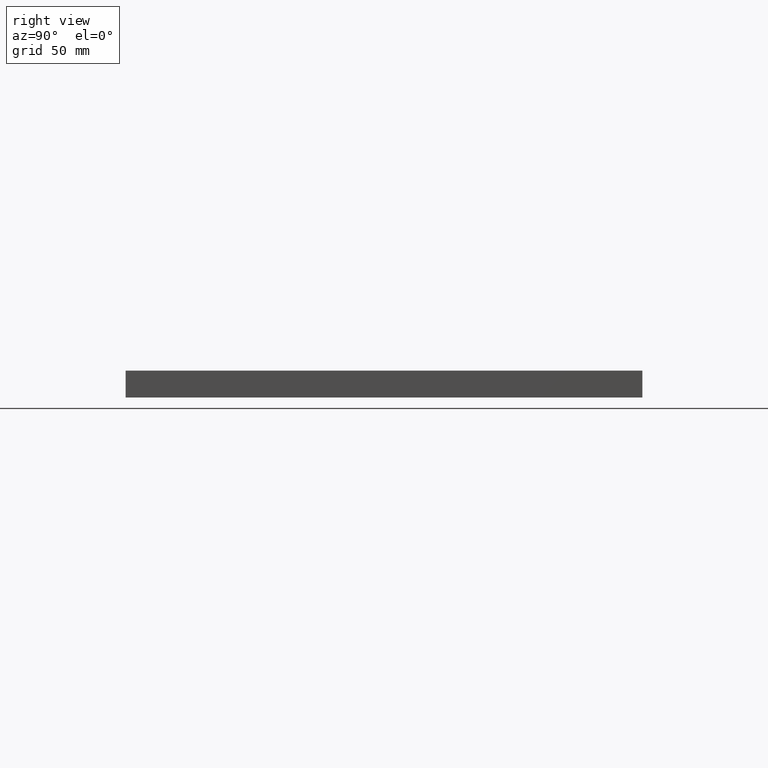
[diagram: clean part render]
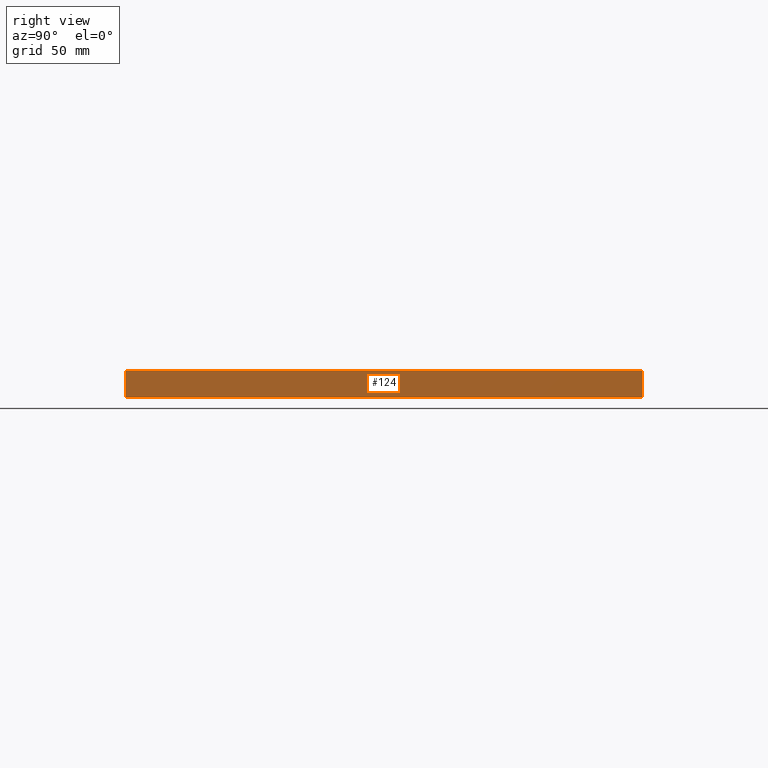
[diagram: same view with one face highlighted and labeled with its STEP entity id]
A machine part, right view. The second image highlights one B-rep face of the part: STEP entity #124.
In plain terms, the highlighted planar face has unit normal (-1, -0, 0).
Its self-contained STEP definition (entity closure, byte-faithful):
#82 = ORIENTED_EDGE ( 'NONE', *, *, #508, .F. ) ;
#123 = VERTEX_POINT ( 'NONE', #2760 ) ;
#124 = ADVANCED_FACE ( 'NONE', ( #3281 ), #3851, .F. ) ;
#180 = EDGE_CURVE ( 'NONE', #441, #559, #4065, .T. ) ;
#228 = DIRECTION ( 'NONE',  ( -0.0000000000000000000, -0.0000000000000000000, -1.000000000000000000 ) ) ;
#244 = CARTESIAN_POINT ( 'NONE',  ( 124.9999999999999700, 124.9999999999999900, 0.0000000000000000000 ) ) ;
#361 = EDGE_CURVE ( 'NONE', #2437, #559, #4254, .T. ) ;
#441 = VERTEX_POINT ( 'NONE', #1425 ) ;
#508 = EDGE_CURVE ( 'NONE', #123, #2437, #3167, .T. ) ;
#559 = VERTEX_POINT ( 'NONE', #1356 ) ;
#1033 = VECTOR ( 'NONE', #2206, 1000.000000000000000 ) ;
#1126 = ORIENTED_EDGE ( 'NONE', *, *, #2587, .T. ) ;
#1174 = LINE ( 'NONE', #3265, #2050 ) ;
#1356 = CARTESIAN_POINT ( 'NONE',  ( 124.9999999999999700, 124.9999999999999900, 0.0000000000000000000 ) ) ;
#1359 = DIRECTION ( 'NONE',  ( -0.0000000000000000000, -0.0000000000000000000, -1.000000000000000000 ) ) ;
#1425 = CARTESIAN_POINT ( 'NONE',  ( 125.0000000000000000, -125.0000000000000000, 0.0000000000000000000 ) ) ;
#1451 = VECTOR ( 'NONE', #1359, 1000.000000000000000 ) ;
#1506 = ORIENTED_EDGE ( 'NONE', *, *, #361, .F. ) ;
#1593 = DIRECTION ( 'NONE',  ( -1.110223024625156500E-016, 1.000000000000000000, -0.0000000000000000000 ) ) ;
#1792 = CARTESIAN_POINT ( 'NONE',  ( 124.9999999999999700, 124.9999999999999900, 13.00000000000000000 ) ) ;
#1945 = CARTESIAN_POINT ( 'NONE',  ( 124.9999999999999700, 124.9999999999999900, 13.00000000000000000 ) ) ;
#2050 = VECTOR ( 'NONE', #228, 1000.000000000000000 ) ;
#2206 = DIRECTION ( 'NONE',  ( -1.110223024625156500E-016, 1.000000000000000000, -0.0000000000000000000 ) ) ;
#2437 = VERTEX_POINT ( 'NONE', #1945 ) ;
#2587 = EDGE_CURVE ( 'NONE', #123, #441, #1174, .T. ) ;
#2616 = EDGE_LOOP ( 'NONE', ( #4808, #1506, #82, #1126 ) ) ;
#2760 = CARTESIAN_POINT ( 'NONE',  ( 125.0000000000000000, -125.0000000000000000, 13.00000000000000000 ) ) ;
#3167 = LINE ( 'NONE', #1792, #4192 ) ;
#3209 = CARTESIAN_POINT ( 'NONE',  ( 124.9999999999999700, 124.9999999999999900, 13.00000000000000000 ) ) ;
#3265 = CARTESIAN_POINT ( 'NONE',  ( 125.0000000000000000, -125.0000000000000000, 13.00000000000000000 ) ) ;
#3281 = FACE_OUTER_BOUND ( 'NONE', #2616, .T. ) ;
#3851 = PLANE ( 'NONE',  #4641 ) ;
#3871 = DIRECTION ( 'NONE',  ( -1.000000000000000000, -1.110223024625156500E-016, 0.0000000000000000000 ) ) ;
#3918 = DIRECTION ( 'NONE',  ( 1.110223024625156500E-016, -1.000000000000000000, 0.0000000000000000000 ) ) ;
#4065 = LINE ( 'NONE', #244, #1033 ) ;
#4192 = VECTOR ( 'NONE', #1593, 1000.000000000000000 ) ;
#4254 = LINE ( 'NONE', #4777, #1451 ) ;
#4641 = AXIS2_PLACEMENT_3D ( 'NONE', #3209, #3871, #3918 ) ;
#4777 = CARTESIAN_POINT ( 'NONE',  ( 124.9999999999999700, 124.9999999999999900, 13.00000000000000000 ) ) ;
#4808 = ORIENTED_EDGE ( 'NONE', *, *, #180, .T. ) ;